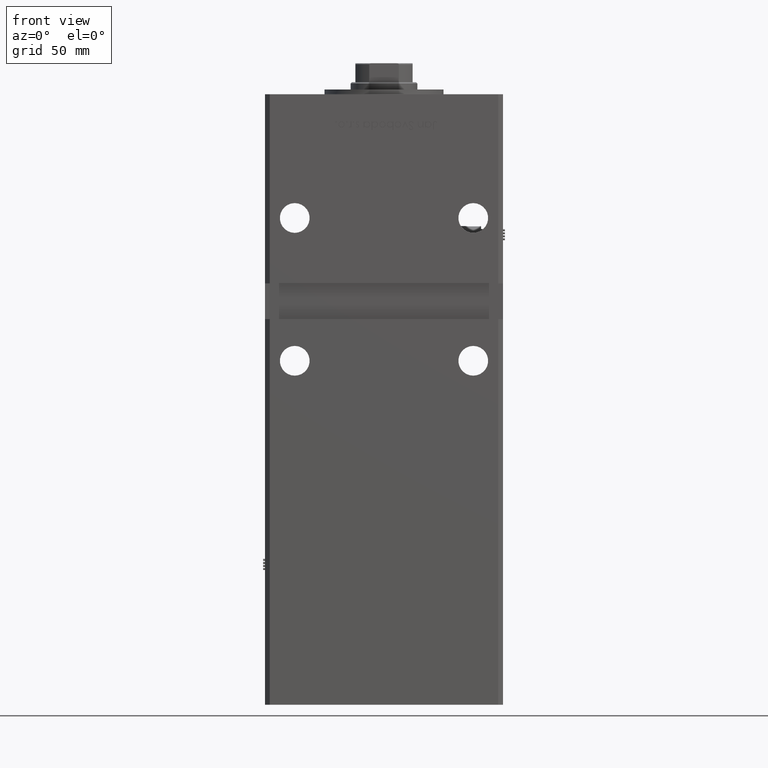
[diagram: clean part render]
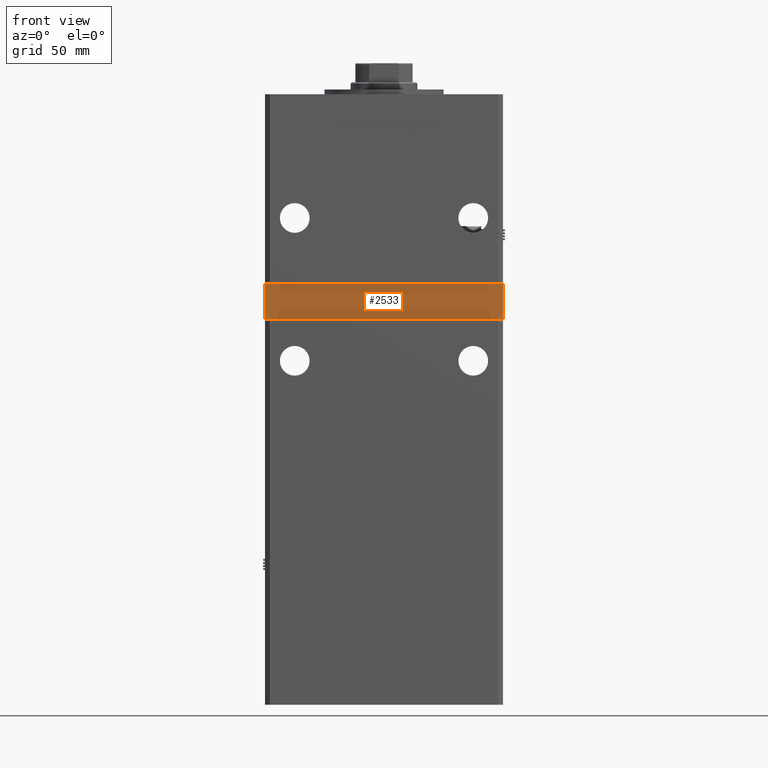
[diagram: same view with one face highlighted and labeled with its STEP entity id]
A machine part, front view. The second image highlights one B-rep face of the part: STEP entity #2533.
In plain terms, the highlighted planar face has unit normal (0, -1, 0).
Its self-contained STEP definition (entity closure, byte-faithful):
#1108 = EDGE_CURVE ( 'NONE', #7873, #31038, #21064, .T. ) ;
#2533 = ADVANCED_FACE ( 'NONE', ( #47635 ), #4988, .T. ) ;
#4632 = CARTESIAN_POINT ( 'NONE',  ( -49.99999999999998579, -38.50000000000000000, 143.0000000000000284 ) ) ;
#4972 = VERTEX_POINT ( 'NONE', #41792 ) ;
#4988 = PLANE ( 'NONE',  #29343 ) ;
#5820 = CARTESIAN_POINT ( 'NONE',  ( -49.99999999999998579, -38.50000000000000000, 158.0000000000000000 ) ) ;
#7873 = VERTEX_POINT ( 'NONE', #9010 ) ;
#9010 = CARTESIAN_POINT ( 'NONE',  ( 49.99999999999998579, -38.49999999999999289, 143.0000000000000284 ) ) ;
#10192 = DIRECTION ( 'NONE',  ( 0.000000000000000000, 0.000000000000000000, -1.000000000000000000 ) ) ;
#11553 = DIRECTION ( 'NONE',  ( 1.000000000000000000, 0.000000000000000000, 0.000000000000000000 ) ) ;
#16252 = EDGE_CURVE ( 'NONE', #55128, #7873, #39607, .T. ) ;
#16516 = DIRECTION ( 'NONE',  ( -0.000000000000000000, -0.000000000000000000, 1.000000000000000000 ) ) ;
#17503 = EDGE_CURVE ( 'NONE', #31038, #4972, #44776, .T. ) ;
#21064 = LINE ( 'NONE', #42410, #44752 ) ;
#24128 = VECTOR ( 'NONE', #49318, 1000.000000000000000 ) ;
#24635 = ORIENTED_EDGE ( 'NONE', *, *, #17503, .T. ) ;
#29343 = AXIS2_PLACEMENT_3D ( 'NONE', #39118, #43102, #47920 ) ;
#31038 = VERTEX_POINT ( 'NONE', #33789 ) ;
#31383 = EDGE_LOOP ( 'NONE', ( #42542, #24635, #52472, #55274 ) ) ;
#32610 = CARTESIAN_POINT ( 'NONE',  ( -49.99999999999998579, -38.50000000000000000, 143.0000000000000284 ) ) ;
#33789 = CARTESIAN_POINT ( 'NONE',  ( 49.99999999999998579, -38.50000000000000000, 158.0000000000000000 ) ) ;
#34095 = VECTOR ( 'NONE', #11553, 1000.000000000000000 ) ;
#36918 = LINE ( 'NONE', #49158, #52243 ) ;
#39118 = CARTESIAN_POINT ( 'NONE',  ( 0.000000000000000000, -38.50000000000000000, 0.000000000000000000 ) ) ;
#39538 = EDGE_CURVE ( 'NONE', #4972, #55128, #36918, .T. ) ;
#39607 = LINE ( 'NONE', #4632, #34095 ) ;
#41792 = CARTESIAN_POINT ( 'NONE',  ( -49.99999999999998579, -38.50000000000000000, 158.0000000000000000 ) ) ;
#42410 = CARTESIAN_POINT ( 'NONE',  ( 49.99999999999998579, -38.50000000000000000, 158.0000000000000000 ) ) ;
#42542 = ORIENTED_EDGE ( 'NONE', *, *, #1108, .T. ) ;
#43102 = DIRECTION ( 'NONE',  ( 0.000000000000000000, -1.000000000000000000, 0.000000000000000000 ) ) ;
#44752 = VECTOR ( 'NONE', #16516, 1000.000000000000000 ) ;
#44776 = LINE ( 'NONE', #5820, #24128 ) ;
#47635 = FACE_OUTER_BOUND ( 'NONE', #31383, .T. ) ;
#47920 = DIRECTION ( 'NONE',  ( 0.000000000000000000, -0.000000000000000000, -1.000000000000000000 ) ) ;
#49158 = CARTESIAN_POINT ( 'NONE',  ( -49.99999999999998579, -38.50000000000000000, 158.0000000000000000 ) ) ;
#49318 = DIRECTION ( 'NONE',  ( -1.000000000000000000, -0.000000000000000000, -0.000000000000000000 ) ) ;
#52243 = VECTOR ( 'NONE', #10192, 1000.000000000000000 ) ;
#52472 = ORIENTED_EDGE ( 'NONE', *, *, #39538, .T. ) ;
#55128 = VERTEX_POINT ( 'NONE', #32610 ) ;
#55274 = ORIENTED_EDGE ( 'NONE', *, *, #16252, .T. ) ;